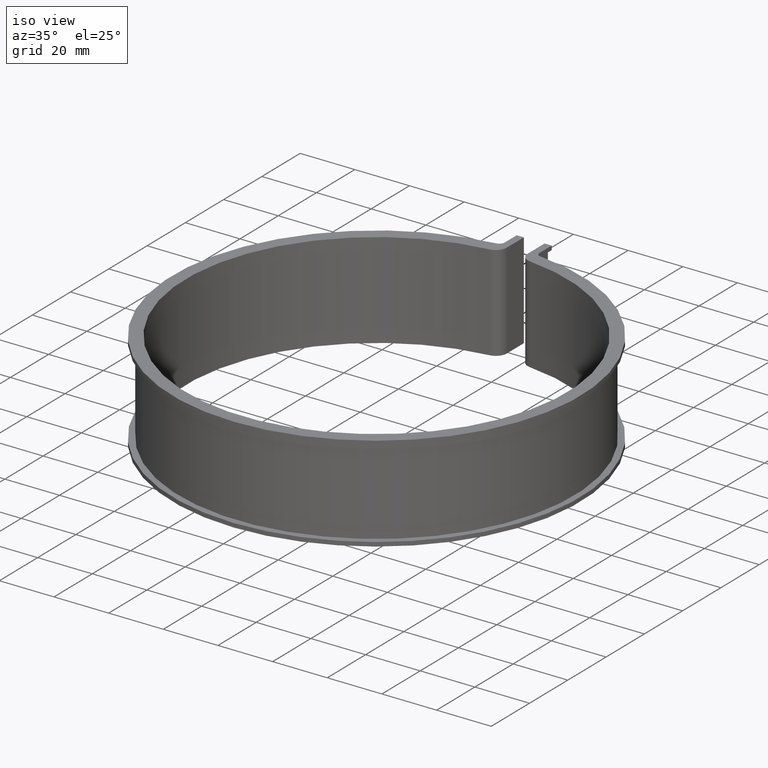
[diagram: clean part render]
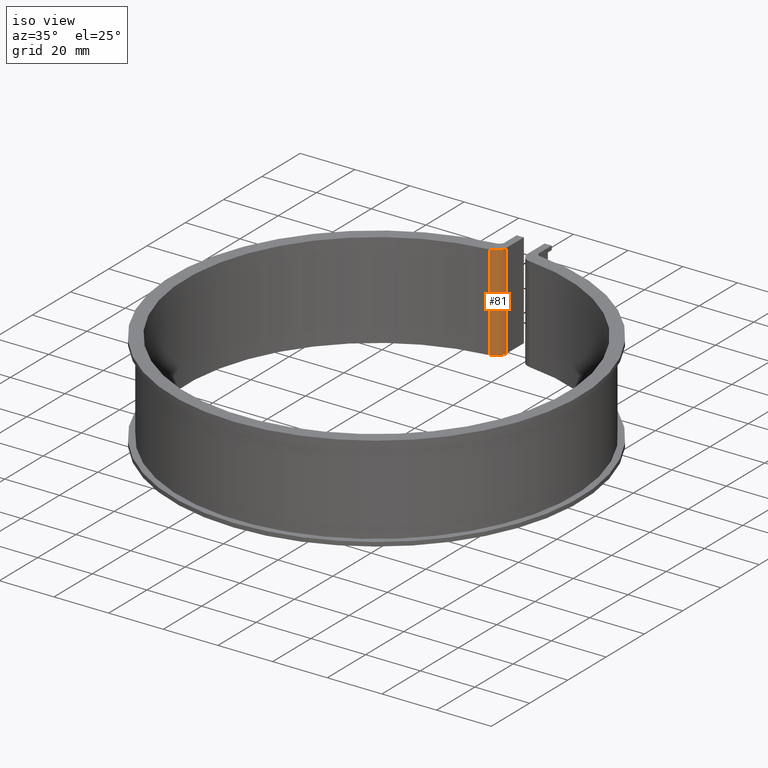
[diagram: same view with one face highlighted and labeled with its STEP entity id]
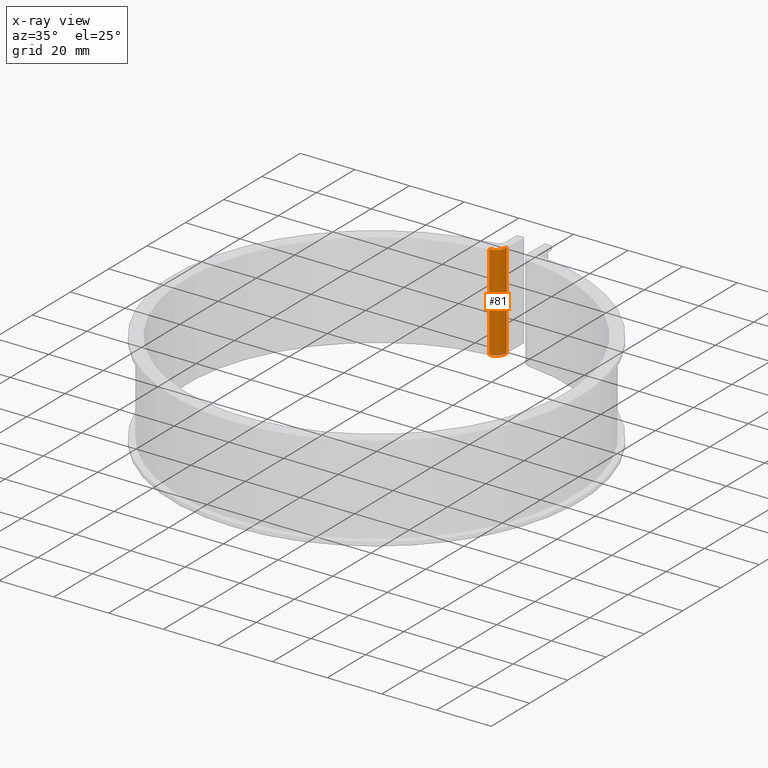
[diagram: x-ray of the same camera — body ghosted, the highlighted face saturated]
A machine part, iso view. The second image highlights one B-rep face of the part: STEP entity #81.
The next image is the same camera in x-ray: the body ghosted, the highlighted face saturated — about 0% of this face is hidden behind the body in this view.
In plain terms, the highlighted cylindrical surface (edge-blend (fillet) strip) has radius 4 mm, axis along (0, 0, -1).
Its self-contained STEP definition (entity closure, byte-faithful):
#81 = ADVANCED_FACE( '', ( #114 ), #115, .T. );
#114 = FACE_OUTER_BOUND( '', #166, .T. );
#115 = CYLINDRICAL_SURFACE( '', #167, 4.00000000000000 );
#166 = EDGE_LOOP( '', ( #268, #269, #270, #271 ) );
#167 = AXIS2_PLACEMENT_3D( '', #272, #273, #274 );
#268 = ORIENTED_EDGE( '', *, *, #465, .T. );
#269 = ORIENTED_EDGE( '', *, *, #464, .F. );
#270 = ORIENTED_EDGE( '', *, *, #453, .F. );
#271 = ORIENTED_EDGE( '', *, *, #466, .T. );
#272 = CARTESIAN_POINT( '', ( -7.79999999999999, 73.4872097714970, -32.0000000000000 ) );
#273 = DIRECTION( '', ( 0.000000000000000, 0.000000000000000, -1.00000000000000 ) );
#274 = DIRECTION( '', ( -0.105548037889040, -0.994414205297659, 0.000000000000000 ) );
#453 = EDGE_CURVE( '', #548, #549, #550, .T. );
#464 = EDGE_CURVE( '', #549, #553, #568, .T. );
#465 = EDGE_CURVE( '', #569, #553, #570, .T. );
#466 = EDGE_CURVE( '', #548, #569, #571, .T. );
#548 = VERTEX_POINT( '', #685 );
#549 = VERTEX_POINT( '', #686 );
#550 = LINE( '', #687, #688 );
#553 = VERTEX_POINT( '', #691 );
#568 = CIRCLE( '', #711, 4.00000000000000 );
#569 = VERTEX_POINT( '', #712 );
#570 = LINE( '', #713, #714 );
#571 = CIRCLE( '', #715, 4.00000000000000 );
#685 = CARTESIAN_POINT( '', ( -7.37780784844385, 69.5095529503063, -33.5000000000000 ) );
#686 = CARTESIAN_POINT( '', ( -7.37780784844385, 69.5095529503063, 1.50000000000000 ) );
#687 = CARTESIAN_POINT( '', ( -7.37780784844384, 69.5095529503063, -32.0000000000000 ) );
#688 = VECTOR( '', #829, 1000.00000000000 );
#691 = CARTESIAN_POINT( '', ( -3.80000000000000, 73.4872097714970, 1.50000000000000 ) );
#711 = AXIS2_PLACEMENT_3D( '', #850, #851, #852 );
#712 = CARTESIAN_POINT( '', ( -3.80000000000000, 73.4872097714970, -33.5000000000000 ) );
#713 = CARTESIAN_POINT( '', ( -3.80000000000000, 73.4872097714970, -32.0000000000000 ) );
#714 = VECTOR( '', #853, 1000.00000000000 );
#715 = AXIS2_PLACEMENT_3D( '', #854, #855, #856 );
#829 = DIRECTION( '', ( 0.000000000000000, 0.000000000000000, 1.00000000000000 ) );
#850 = CARTESIAN_POINT( '', ( -7.80000000000000, 73.4872097714970, 1.50000000000000 ) );
#851 = DIRECTION( '', ( 0.000000000000000, 0.000000000000000, 1.00000000000000 ) );
#852 = DIRECTION( '', ( 1.00000000000000, 0.000000000000000, 0.000000000000000 ) );
#853 = DIRECTION( '', ( 0.000000000000000, 0.000000000000000, 1.00000000000000 ) );
#854 = CARTESIAN_POINT( '', ( -7.80000000000000, 73.4872097714970, -33.5000000000000 ) );
#855 = DIRECTION( '', ( 0.000000000000000, 0.000000000000000, 1.00000000000000 ) );
#856 = DIRECTION( '', ( 1.00000000000000, 0.000000000000000, 0.000000000000000 ) );